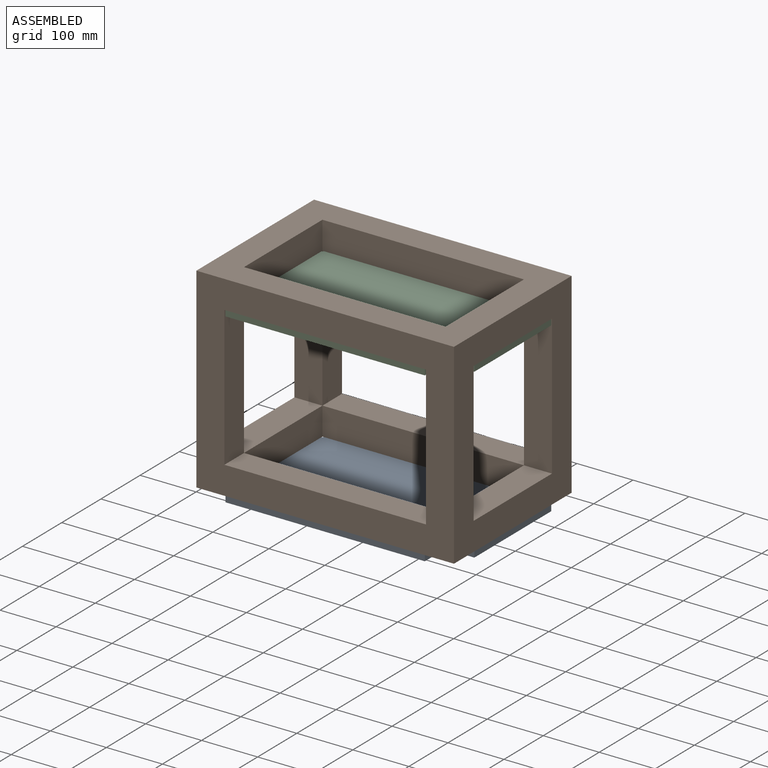
[diagram: assembled view]
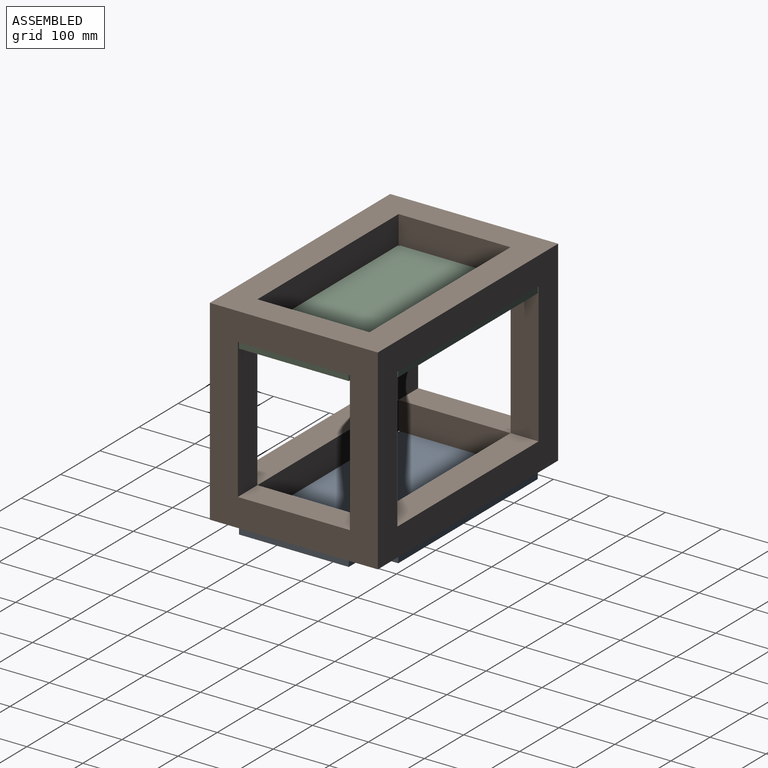
[diagram: assembled view, second angle]
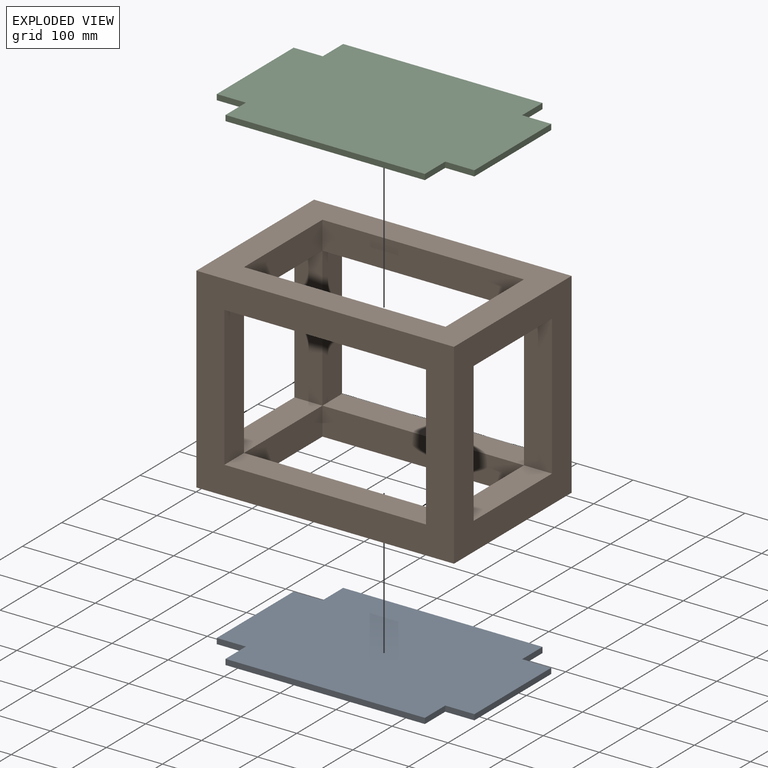
[diagram: exploded view]
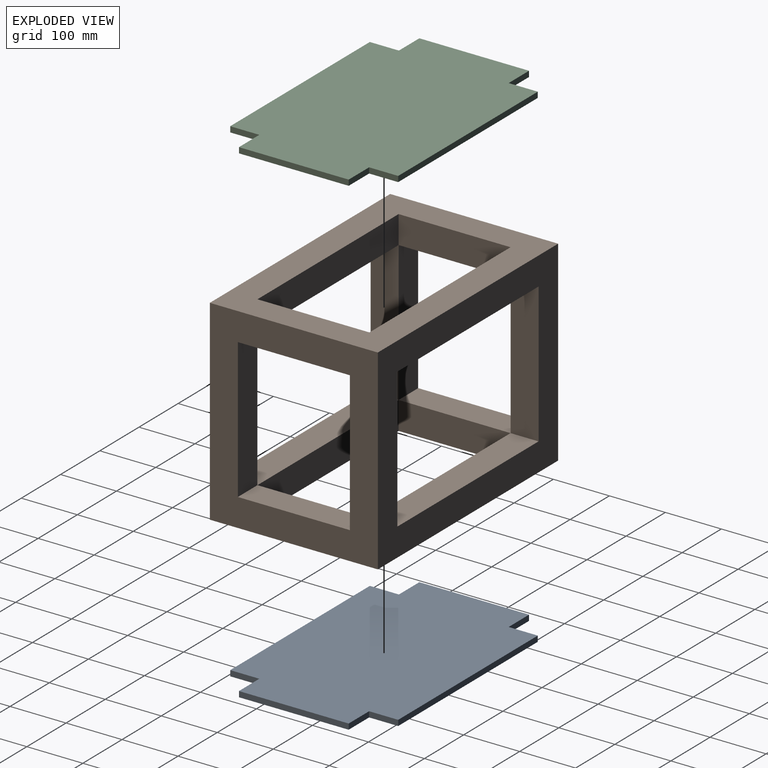
[diagram: exploded view, second angle]
ASSEMBLY  parts=3 mates=2
PART A: 14 faces, bbox 460x300x10 mm
  f0: plane 52x10mm, normal (-1,0,0), area 520mm2, adj f1,f11,f12,f13
  f1: plane 356x10mm, normal (0,-1,0), area 3560mm2, adj f0,f2,f12,f13
  f2: plane 52x10mm, normal (1,0,0), area 520mm2, adj f1,f3,f12,f13
  f3: plane 52x10mm, normal (0,-1,0), area 520mm2, adj f2,f4,f12,f13
  f4: plane 196x10mm, normal (1,0,0), area 1960mm2, adj f3,f5,f12,f13
  f5: plane 52x10mm, normal (0,1,0), area 520mm2, adj f4,f6,f12,f13
  f6: plane 52x10mm, normal (1,0,0), area 520mm2, adj f5,f7,f12,f13
  f7: plane 356x10mm, normal (0,1,0), area 3560mm2, adj f6,f8,f12,f13
  f8: plane 52x10mm, normal (-1,0,0), area 520mm2, adj f7,f9,f12,f13
  f9: plane 52x10mm, normal (0,1,0), area 520mm2, adj f8,f10,f12,f13
  f10: plane 196x10mm, normal (-1,0,0), area 1960mm2, adj f9,f11,f12,f13
  f11: plane 52x10mm, normal (0,-1,0), area 520mm2, adj f0,f10,f12,f13
  f12: plane 460x300mm, normal (0,0,1), area 127184mm2, adj f0,f1,f2,f3,f4,f5,f6,f7
  f13: plane 460x300mm, normal (0,0,-1), area 127184mm2, adj f0,f1,f2,f3,f4,f5,f6,f7
PART B: 30 faces, bbox 460x300x350 mm
  f0: plane 200x50mm, normal (0,0,1), area 10000mm2, adj f6,f7,f13,f19
  f1: plane 360x50mm, normal (0,0,1), area 18000mm2, adj f5,f8,f18,f20
  f2: plane 200x50mm, normal (0,0,1), area 10000mm2, adj f4,f9,f15,f17
  f3: plane 360x50mm, normal (0,0,1), area 18000mm2, adj f10,f11,f14,f16
  f4: plane 200x50mm, normal (-1,0,0), area 10000mm2, adj f2,f5,f11,f12
  f5: plane 360x50mm, normal (0,1,0), area 18000mm2, adj f1,f4,f6,f12
  f6: plane 200x50mm, normal (1,0,0), area 10000mm2, adj f0,f5,f11,f12
  f7: plane 350x300mm, normal (-1,0,0), area 55000mm2, adj f0,f8,f10,f12,f13,f19,f21,f28
  f8: plane 460x350mm, normal (0,-1,0), area 71000mm2, adj f1,f7,f9,f12,f18,f20,f28,f29
  f9: plane 350x300mm, normal (1,0,0), area 55000mm2, adj f2,f8,f10,f12,f15,f17,f23,f28
  f10: plane 460x350mm, normal (0,1,0), area 71000mm2, adj f3,f7,f9,f12,f14,f16,f22,f28
  f11: plane 360x50mm, normal (0,-1,0), area 18000mm2, adj f3,f4,f6,f12
  f12: plane 460x300mm, normal (0,0,-1), area 66000mm2, adj f4,f5,f6,f7,f8,f9,f10,f11
  f13: plane 250x50mm, normal (0,-1,0), area 12500mm2, adj f0,f7,f14,f21
  f14: plane 250x50mm, normal (1,0,0), area 12500mm2, adj f3,f10,f13,f22
  f15: plane 250x50mm, normal (0,-1,0), area 12500mm2, adj f2,f9,f16,f23
  f16: plane 250x50mm, normal (-1,0,0), area 12500mm2, adj f3,f10,f15,f22
  f17: plane 250x50mm, normal (0,1,0), area 12500mm2, adj f2,f9,f18,f23
  f18: plane 250x50mm, normal (-1,0,0), area 12500mm2, adj f1,f8,f17,f29
  f19: plane 250x50mm, normal (0,1,0), area 12500mm2, adj f0,f7,f20,f21
  f20: plane 250x50mm, normal (1,0,0), area 12500mm2, adj f1,f8,f19,f29
  f21: plane 200x50mm, normal (0,0,-1), area 10000mm2, adj f7,f13,f19,f24
  f22: plane 360x50mm, normal (0,0,-1), area 18000mm2, adj f10,f14,f16,f25
  f23: plane 200x50mm, normal (0,0,-1), area 10000mm2, adj f9,f15,f17,f26
  f24: plane 200x50mm, normal (1,0,0), area 10000mm2, adj f21,f25,f27,f28
  f25: plane 360x50mm, normal (0,-1,0), area 18000mm2, adj f22,f24,f26,f28
  f26: plane 200x50mm, normal (-1,0,0), area 10000mm2, adj f23,f25,f27,f28
  f27: plane 360x50mm, normal (0,1,0), area 18000mm2, adj f24,f26,f28,f29
  f28: plane 460x300mm, normal (0,0,1), area 66000mm2, adj f7,f8,f9,f10,f24,f25,f26,f27
  f29: plane 360x50mm, normal (0,0,-1), area 18000mm2, adj f8,f18,f20,f27
PART C: same geometry as A
PLACE A t=(-160.73,16.28,4.43)mm
PLACE B t=(-160.73,16.28,14.43)mm
PLACE C t=(-160.73,16.28,304.43)mm
MATE fastened A.f12 <-> B.f12  axis (0,0,1) through (-108.73,68.28,14.43)mm
MATE fastened C.f12 <-> B.f21  axis (0,0,1) through (-108.73,264.28,314.43)mm
